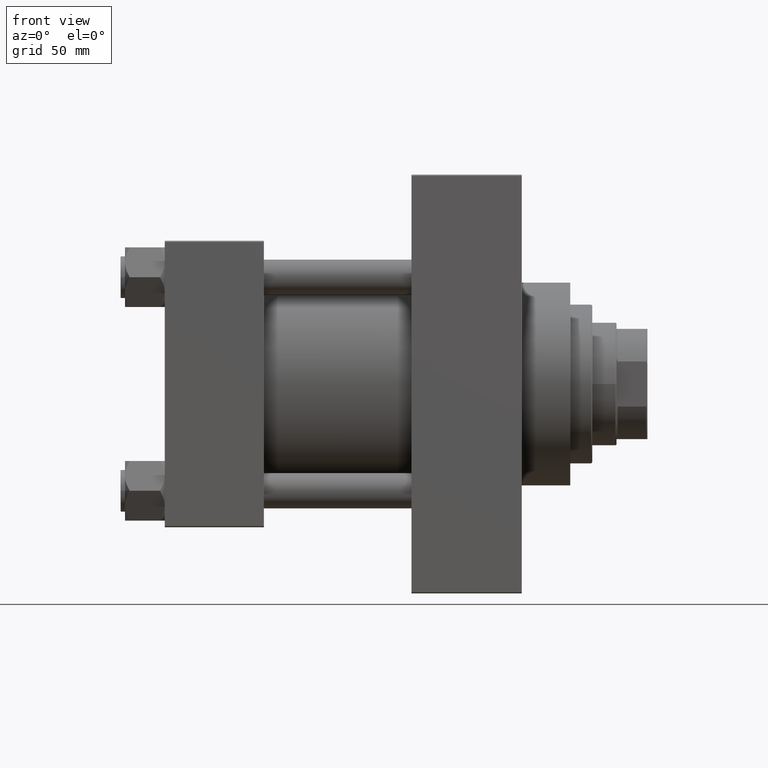
[diagram: clean part render]
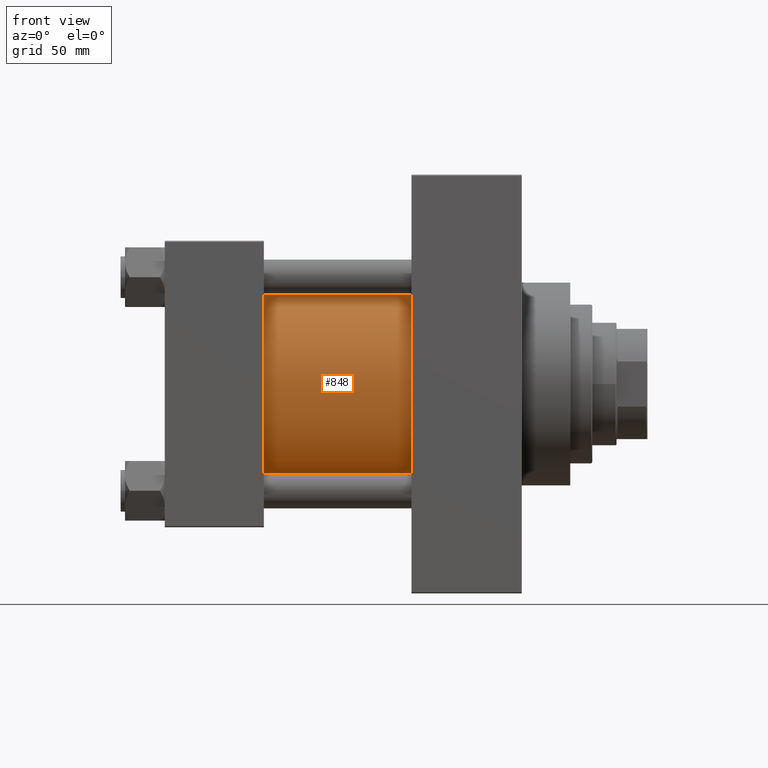
[diagram: same view with one face highlighted and labeled with its STEP entity id]
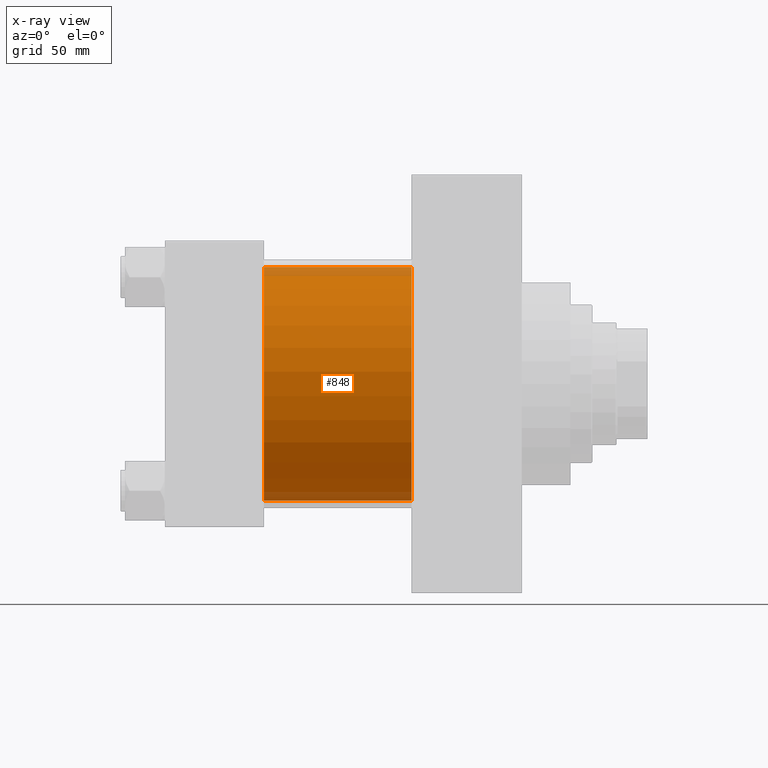
[diagram: x-ray of the same camera — body ghosted, the highlighted face saturated]
A machine part, front view. The second image highlights one B-rep face of the part: STEP entity #848.
The next image is the same camera in x-ray: the body ghosted, the highlighted face saturated — about 7% of this face is hidden behind the body in this view.
In plain terms, the highlighted cylindrical surface (partial cylindrical patch) has radius 53 mm, axis along (-1, -0, -0).
Its self-contained STEP definition (entity closure, byte-faithful):
#736 = CYLINDRICAL_SURFACE ( 'NONE', #18590, 53.00000000000000711 ) ;
#848 = ADVANCED_FACE ( 'NONE', ( #4596 ), #736, .T. ) ;
#1859 = ORIENTED_EDGE ( 'NONE', *, *, #21482, .T. ) ;
#3079 = CARTESIAN_POINT ( 'NONE',  ( 112.0000000000000000, -2.602085213965210642E-15, 53.00000000000000711 ) ) ;
#4129 = CIRCLE ( 'NONE', #44963, 53.00000000000000711 ) ;
#4596 = FACE_OUTER_BOUND ( 'NONE', #40130, .T. ) ;
#6455 = VERTEX_POINT ( 'NONE', #3079 ) ;
#10822 = VERTEX_POINT ( 'NONE', #42945 ) ;
#11539 = VERTEX_POINT ( 'NONE', #17730 ) ;
#14545 = LINE ( 'NONE', #30485, #16529 ) ;
#14752 = EDGE_CURVE ( 'NONE', #6455, #11539, #39328, .T. ) ;
#16529 = VECTOR ( 'NONE', #23454, 1000.000000000000000 ) ;
#17730 = CARTESIAN_POINT ( 'NONE',  ( 112.0000000000000000, 3.888542821515762466E-15, -53.00000000000000711 ) ) ;
#18590 = AXIS2_PLACEMENT_3D ( 'NONE', #44922, #26601, #19335 ) ;
#19131 = EDGE_CURVE ( 'NONE', #11539, #46897, #39480, .T. ) ;
#19335 = DIRECTION ( 'NONE',  ( 0.000000000000000000, 0.000000000000000000, 1.000000000000000000 ) ) ;
#21482 = EDGE_CURVE ( 'NONE', #10822, #46897, #4129, .T. ) ;
#23454 = DIRECTION ( 'NONE',  ( -1.000000000000000000, -0.000000000000000000, -0.000000000000000000 ) ) ;
#23904 = CARTESIAN_POINT ( 'NONE',  ( 45.00000000000000000, 3.888542821515762466E-15, -53.00000000000000711 ) ) ;
#23935 = ORIENTED_EDGE ( 'NONE', *, *, #19131, .F. ) ;
#24281 = DIRECTION ( 'NONE',  ( -1.000000000000000000, -0.000000000000000000, -0.000000000000000000 ) ) ;
#26601 = DIRECTION ( 'NONE',  ( -1.000000000000000000, -0.000000000000000000, -0.000000000000000000 ) ) ;
#28457 = EDGE_CURVE ( 'NONE', #6455, #10822, #14545, .T. ) ;
#30485 = CARTESIAN_POINT ( 'NONE',  ( 112.0000000000000000, -2.602085213965210642E-15, 53.00000000000000711 ) ) ;
#30688 = DIRECTION ( 'NONE',  ( 0.000000000000000000, 0.000000000000000000, 1.000000000000000000 ) ) ;
#31391 = DIRECTION ( 'NONE',  ( 0.000000000000000000, 0.000000000000000000, -1.000000000000000000 ) ) ;
#32098 = DIRECTION ( 'NONE',  ( 1.000000000000000000, 0.000000000000000000, 0.000000000000000000 ) ) ;
#35145 = ORIENTED_EDGE ( 'NONE', *, *, #28457, .T. ) ;
#36266 = AXIS2_PLACEMENT_3D ( 'NONE', #46554, #32098, #31391 ) ;
#38618 = CARTESIAN_POINT ( 'NONE',  ( 45.00000000000000000, -2.602085213965210642E-15, 0.000000000000000000 ) ) ;
#39328 = CIRCLE ( 'NONE', #36266, 53.00000000000000711 ) ;
#39480 = LINE ( 'NONE', #42135, #43397 ) ;
#40130 = EDGE_LOOP ( 'NONE', ( #23935, #46279, #35145, #1859 ) ) ;
#42135 = CARTESIAN_POINT ( 'NONE',  ( 112.0000000000000000, 3.888542821515762466E-15, -53.00000000000000711 ) ) ;
#42945 = CARTESIAN_POINT ( 'NONE',  ( 45.00000000000000000, -2.602085213965210642E-15, 53.00000000000000711 ) ) ;
#43397 = VECTOR ( 'NONE', #24281, 1000.000000000000000 ) ;
#44912 = DIRECTION ( 'NONE',  ( 1.000000000000000000, -0.000000000000000000, 0.000000000000000000 ) ) ;
#44922 = CARTESIAN_POINT ( 'NONE',  ( 112.0000000000000000, -2.602085213965210642E-15, 0.000000000000000000 ) ) ;
#44963 = AXIS2_PLACEMENT_3D ( 'NONE', #38618, #44912, #30688 ) ;
#46279 = ORIENTED_EDGE ( 'NONE', *, *, #14752, .F. ) ;
#46554 = CARTESIAN_POINT ( 'NONE',  ( 112.0000000000000000, -2.602085213965210642E-15, 0.000000000000000000 ) ) ;
#46897 = VERTEX_POINT ( 'NONE', #23904 ) ;